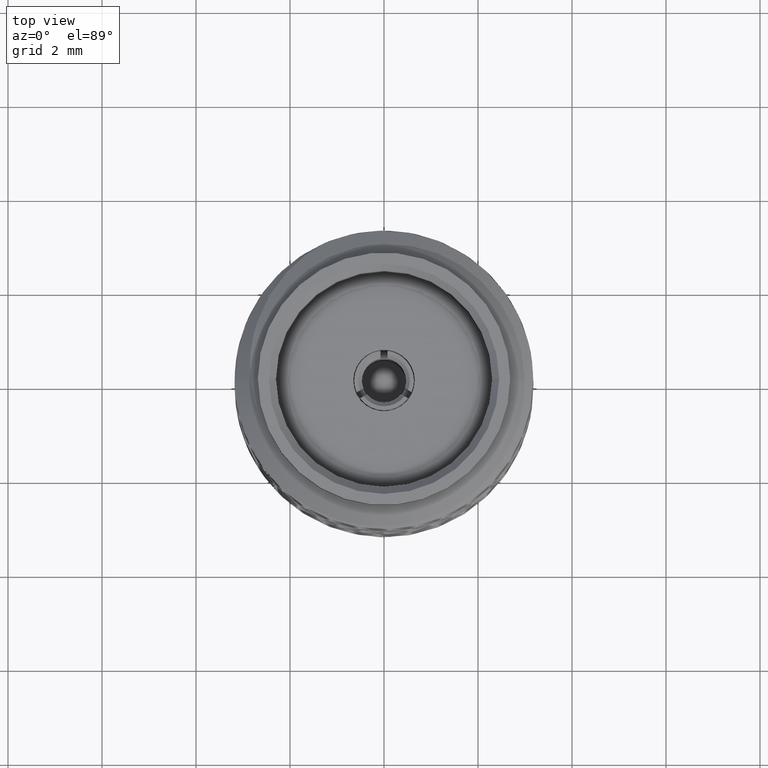
[diagram: clean part render]
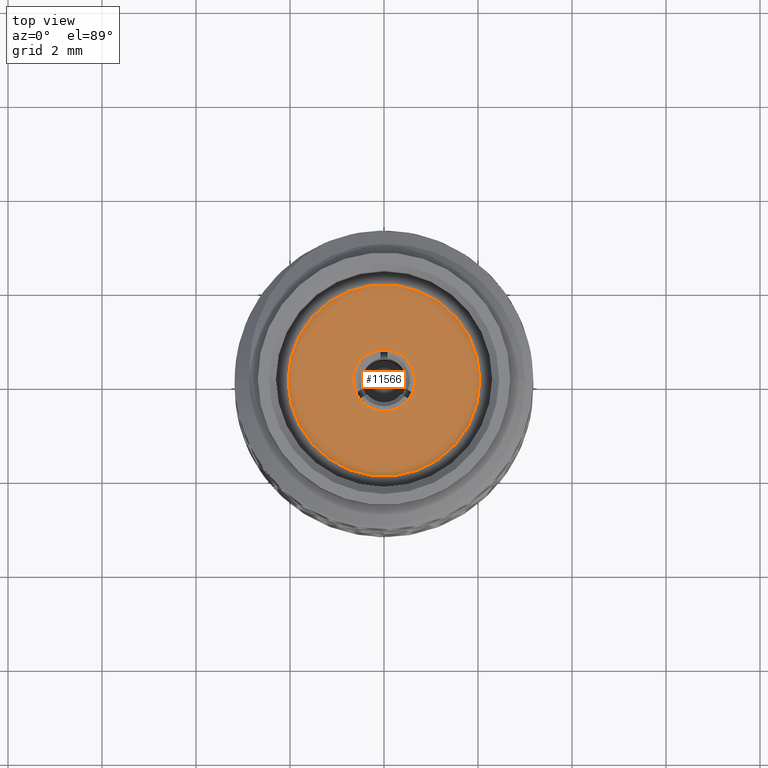
[diagram: same view with one face highlighted and labeled with its STEP entity id]
A machine part, top view. The second image highlights one B-rep face of the part: STEP entity #11566.
In plain terms, the highlighted planar face has unit normal (0, 0, 1).
Its self-contained STEP definition (entity closure, byte-faithful):
#34 = CIRCLE ( 'NONE', #12825, 0.6549092138251293400 ) ;
#241 = EDGE_CURVE ( 'NONE', #4114, #4755, #5280, .T. ) ;
#990 = CARTESIAN_POINT ( 'NONE',  ( 2.039531283029209600, 0.0000000000000000000, 4.320000000000000300 ) ) ;
#1270 = DIRECTION ( 'NONE',  ( 1.000000000000000000, 0.0000000000000000000, 0.0000000000000000000 ) ) ;
#1567 = AXIS2_PLACEMENT_3D ( 'NONE', #6374, #4139, #8450 ) ;
#1687 = VERTEX_POINT ( 'NONE', #2700 ) ;
#1722 = EDGE_LOOP ( 'NONE', ( #8670, #3982 ) ) ;
#2093 = AXIS2_PLACEMENT_3D ( 'NONE', #10197, #8102, #6071 ) ;
#2700 = CARTESIAN_POINT ( 'NONE',  ( 0.6549092138251293400, 0.0000000000000000000, 4.320000000000000300 ) ) ;
#3553 = DIRECTION ( 'NONE',  ( 0.0000000000000000000, 0.0000000000000000000, 1.000000000000000000 ) ) ;
#3982 = ORIENTED_EDGE ( 'NONE', *, *, #5220, .F. ) ;
#4114 = VERTEX_POINT ( 'NONE', #990 ) ;
#4139 = DIRECTION ( 'NONE',  ( 0.0000000000000000000, 0.0000000000000000000, 1.000000000000000000 ) ) ;
#4599 = CARTESIAN_POINT ( 'NONE',  ( 0.0000000000000000000, 0.0000000000000000000, 4.320000000000000300 ) ) ;
#4755 = VERTEX_POINT ( 'NONE', #12534 ) ;
#4781 = DIRECTION ( 'NONE',  ( 1.000000000000000000, 0.0000000000000000000, -0.0000000000000000000 ) ) ;
#4835 = PLANE ( 'NONE',  #12037 ) ;
#4879 = CARTESIAN_POINT ( 'NONE',  ( 0.0000000000000000000, 0.0000000000000000000, 4.320000000000000300 ) ) ;
#5220 = EDGE_CURVE ( 'NONE', #7875, #1687, #34, .T. ) ;
#5280 = CIRCLE ( 'NONE', #12615, 2.039531283029209600 ) ;
#5587 = EDGE_CURVE ( 'NONE', #1687, #7875, #11925, .T. ) ;
#6071 = DIRECTION ( 'NONE',  ( 1.000000000000000000, 0.0000000000000000000, 0.0000000000000000000 ) ) ;
#6337 = CIRCLE ( 'NONE', #1567, 2.039531283029209600 ) ;
#6374 = CARTESIAN_POINT ( 'NONE',  ( 0.0000000000000000000, 0.0000000000000000000, 4.320000000000000300 ) ) ;
#6384 = ORIENTED_EDGE ( 'NONE', *, *, #10982, .T. ) ;
#7875 = VERTEX_POINT ( 'NONE', #9452 ) ;
#8102 = DIRECTION ( 'NONE',  ( 0.0000000000000000000, 0.0000000000000000000, 1.000000000000000000 ) ) ;
#8450 = DIRECTION ( 'NONE',  ( 1.000000000000000000, 0.0000000000000000000, 0.0000000000000000000 ) ) ;
#8670 = ORIENTED_EDGE ( 'NONE', *, *, #5587, .F. ) ;
#8874 = FACE_OUTER_BOUND ( 'NONE', #9718, .T. ) ;
#9452 = CARTESIAN_POINT ( 'NONE',  ( -0.6549092138251293400, 8.020324724430540200E-017, 4.320000000000000300 ) ) ;
#9718 = EDGE_LOOP ( 'NONE', ( #13137, #6384 ) ) ;
#9906 = FACE_BOUND ( 'NONE', #1722, .T. ) ;
#10197 = CARTESIAN_POINT ( 'NONE',  ( 0.0000000000000000000, 0.0000000000000000000, 4.320000000000000300 ) ) ;
#10240 = CARTESIAN_POINT ( 'NONE',  ( 0.0000000000000000000, 0.0000000000000000000, 4.320000000000000300 ) ) ;
#10243 = DIRECTION ( 'NONE',  ( 0.0000000000000000000, 0.0000000000000000000, 1.000000000000000000 ) ) ;
#10504 = DIRECTION ( 'NONE',  ( 1.000000000000000000, 0.0000000000000000000, 0.0000000000000000000 ) ) ;
#10982 = EDGE_CURVE ( 'NONE', #4755, #4114, #6337, .T. ) ;
#11566 = ADVANCED_FACE ( 'NONE', ( #9906, #8874 ), #4835, .T. ) ;
#11925 = CIRCLE ( 'NONE', #2093, 0.6549092138251293400 ) ;
#12037 = AXIS2_PLACEMENT_3D ( 'NONE', #4879, #10243, #4781 ) ;
#12534 = CARTESIAN_POINT ( 'NONE',  ( -2.039531283029209600, 2.497705457522616200E-016, 4.320000000000000300 ) ) ;
#12615 = AXIS2_PLACEMENT_3D ( 'NONE', #10240, #13691, #10504 ) ;
#12825 = AXIS2_PLACEMENT_3D ( 'NONE', #4599, #3553, #1270 ) ;
#13137 = ORIENTED_EDGE ( 'NONE', *, *, #241, .T. ) ;
#13691 = DIRECTION ( 'NONE',  ( 0.0000000000000000000, 0.0000000000000000000, 1.000000000000000000 ) ) ;